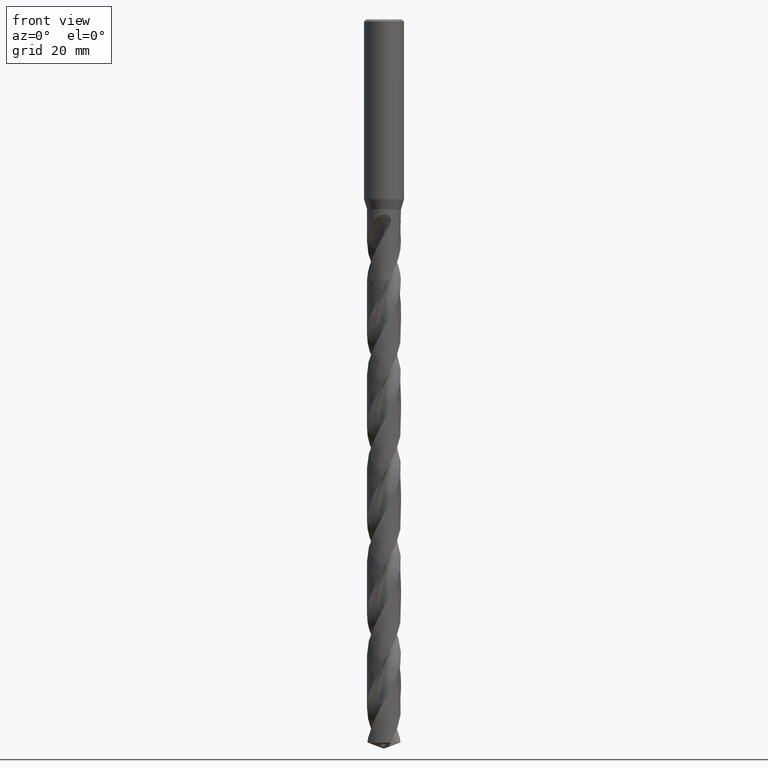
[diagram: clean part render]
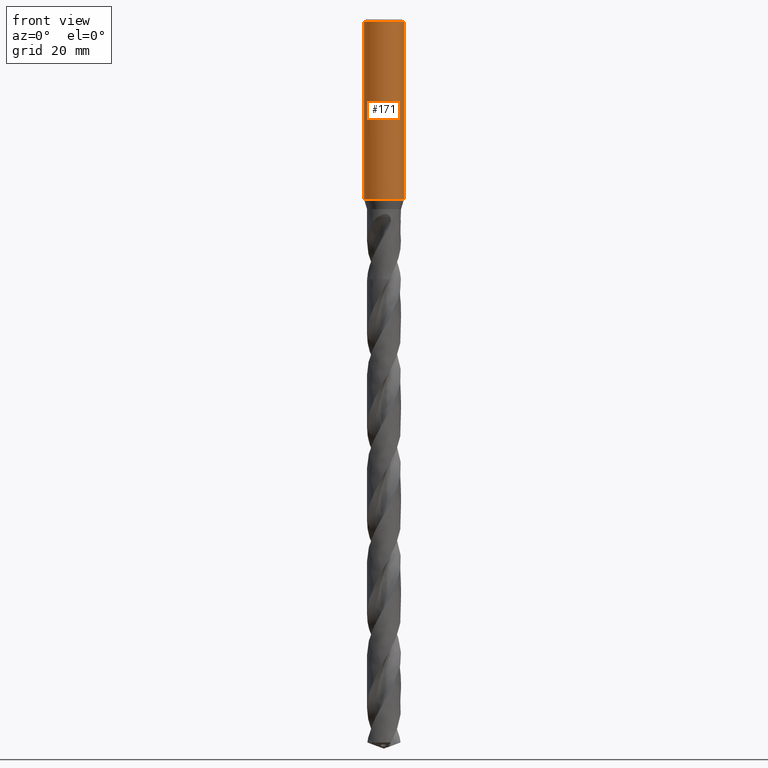
[diagram: same view with one face highlighted and labeled with its STEP entity id]
A machine part, front view. The second image highlights one B-rep face of the part: STEP entity #171.
In plain terms, the highlighted face is a freeform B-spline surface patch.
Its self-contained STEP definition (entity closure, byte-faithful):
#73 = VERTEX_POINT('', #74);
#74 = CARTESIAN_POINT('', (-4., 2.44929359829471E-15, -36.));
#82 = EDGE_CURVE('', #73, #73, #83, .T.);
#83 = CIRCLE('', #84, 4.);
#84 = AXIS2_PLACEMENT_3D('', #85, #86, #87);
#85 = CARTESIAN_POINT('', (1.34978380439567E-31, 2.20436423846524E-15, -36.));
#86 = DIRECTION('', (3.74939945665464E-33, 6.12323399573677E-17, -1.));
#87 = DIRECTION('', (-1., 6.12323399573677E-17, 0.));
#120 = VERTEX_POINT('', #121);
#121 = CARTESIAN_POINT('', (-4., 2.69422295812418E-16, -0.399999999999999));
#137 = EDGE_CURVE('', #120, #120, #138, .T.);
#138 = CIRCLE('', #139, 4.);
#139 = AXIS2_PLACEMENT_3D('', #140, #141, #142);
#140 = CARTESIAN_POINT('', (1.49975978266185E-33, 2.44929359829471E-17, -0.399999999999999));
#141 = DIRECTION('', (3.74939945665464E-33, 6.12323399573677E-17, -1.));
#142 = DIRECTION('', (-1., 6.12323399573677E-17, 0.));
#171 = ADVANCED_FACE('', (#172), #183, .T.);
#172 = FACE_OUTER_BOUND('', #173, .T.);
#173 = EDGE_LOOP('', (#174, #180, #181, #182));
#174 = ORIENTED_EDGE('', *, *, #175, .T.);
#175 = EDGE_CURVE('', #73, #120, #176, .T.);
#176 = LINE('', #177, #178);
#177 = CARTESIAN_POINT('', (-4., 2.44929359829471E-15, -36.));
#178 = VECTOR('', #179, 35.6);
#179 = DIRECTION('', (0., -2.17987130248229E-15, 35.6));
#180 = ORIENTED_EDGE('', *, *, #137, .T.);
#181 = ORIENTED_EDGE('', *, *, #175, .F.);
#182 = ORIENTED_EDGE('', *, *, #82, .F.);
#183 = (
   BOUNDED_SURFACE ()
   B_SPLINE_SURFACE (1, 2, ((#184, #185, #186, #187, #188, #189, #190, #191, #192), (#193, #194, #195, #196, #197, #198, #199, #200, #201)), .UNSPECIFIED., .F., .T., .U.)
   B_SPLINE_SURFACE_WITH_KNOTS ((2, 2), (3, 2, 2, 2, 3), (0., 1.), (0., 6.28318530717959, 12.5663706143592, 18.8495559215388, 25.1327412287183), .UNSPECIFIED.)
   GEOMETRIC_REPRESENTATION_ITEM ()
   RATIONAL_B_SPLINE_SURFACE (((1., 0.707106781186548, 1., 0.707106781186548, 1., 0.707106781186548, 1., 0.707106781186548, 1.), (1., 0.707106781186548, 1., 0.707106781186548, 1., 0.707106781186548, 1., 0.707106781186548, 1.)))
   REPRESENTATION_ITEM ('')
   SURFACE ()
);
#184 = CARTESIAN_POINT('', (-4., 2.44929359829471E-15, -36.));
#185 = CARTESIAN_POINT('', (-4., 4., -36.));
#186 = CARTESIAN_POINT('', (9.86076131526265E-32, 4., -36.));
#187 = CARTESIAN_POINT('', (4., 4., -36.));
#188 = CARTESIAN_POINT('', (4., 2.44929359829471E-15, -36.));
#189 = CARTESIAN_POINT('', (4., -4., -36.));
#190 = CARTESIAN_POINT('', (4.89858719658941E-16, -4., -36.));
#191 = CARTESIAN_POINT('', (-4., -4., -36.));
#192 = CARTESIAN_POINT('', (-4., 2.44929359829471E-15, -36.));
#193 = CARTESIAN_POINT('', (-4., 2.69422295812418E-16, -0.399999999999999));
#194 = CARTESIAN_POINT('', (-4., 4., -0.399999999999998));
#195 = CARTESIAN_POINT('', (0., 4., -0.399999999999998));
#196 = CARTESIAN_POINT('', (4., 4., -0.399999999999998));
#197 = CARTESIAN_POINT('', (4., 2.69422295812418E-16, -0.399999999999999));
#198 = CARTESIAN_POINT('', (4., -4., -0.399999999999999));
#199 = CARTESIAN_POINT('', (4.89858719658941E-16, -4., -0.399999999999999));
#200 = CARTESIAN_POINT('', (-4., -4., -0.399999999999999));
#201 = CARTESIAN_POINT('', (-4., 2.69422295812418E-16, -0.399999999999999));